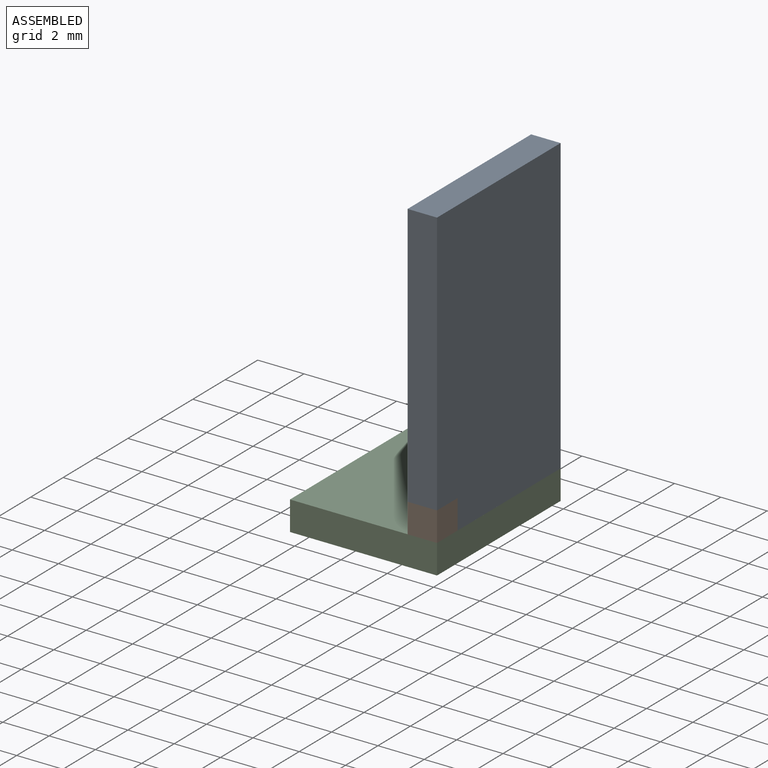
[diagram: assembled view]
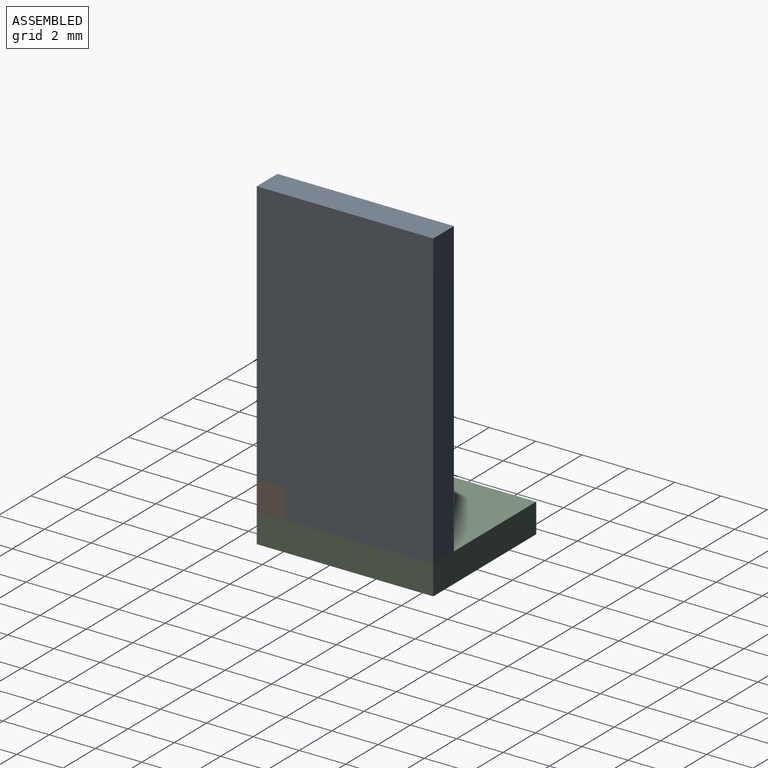
[diagram: assembled view, second angle]
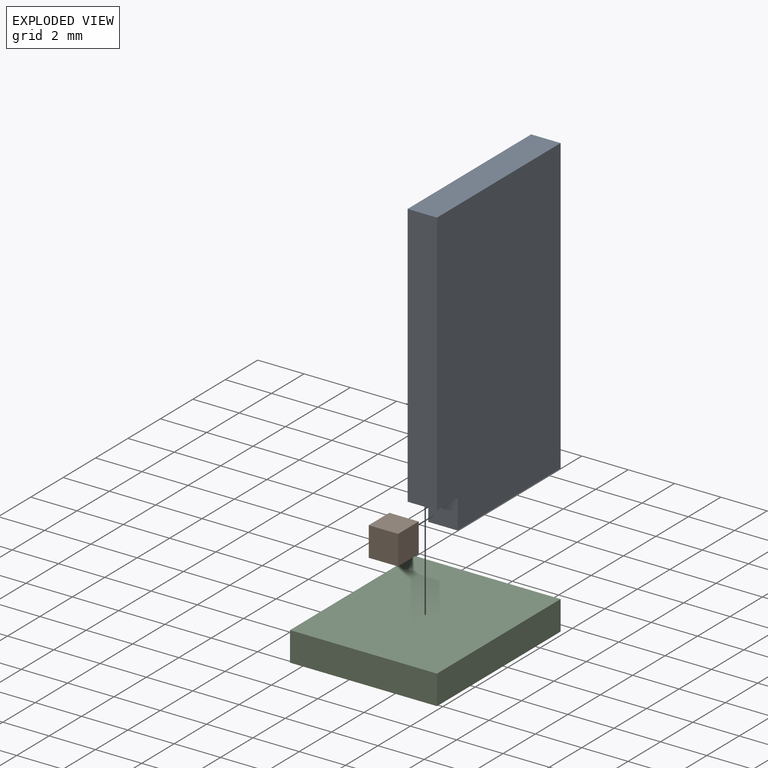
[diagram: exploded view]
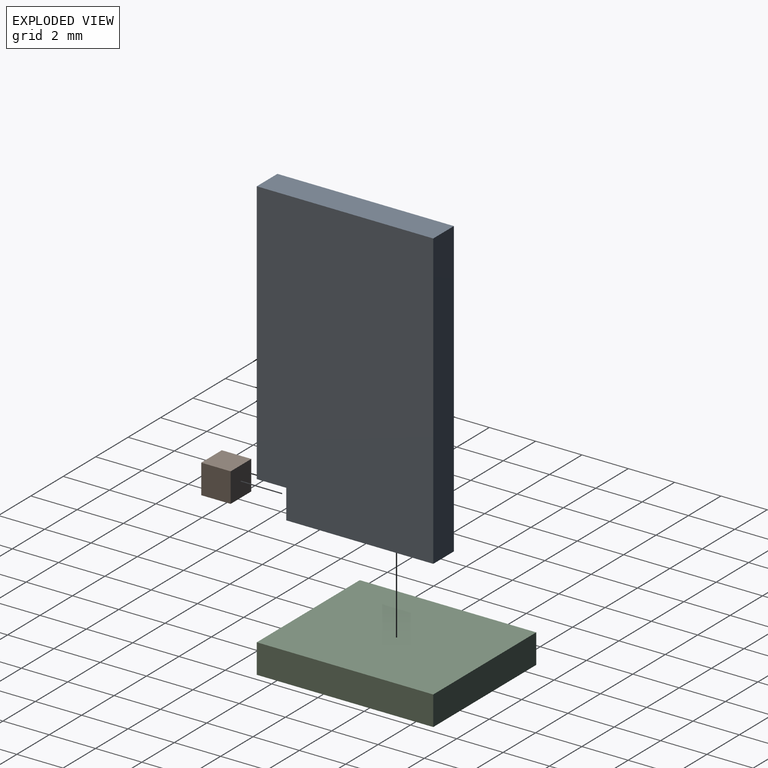
[diagram: exploded view, second angle]
ASSEMBLY  parts=3 mates=2
PART A: 8 faces, bbox 1.3x7.6x12.7 mm
  f0: plane 1.27x1.27mm, normal (0,0,1), area 1.6mm2, adj f1,f2,f4,f6
  f1: plane 11.43x1.27mm, normal (0,1,0), area 14.5mm2, adj f0,f2,f4,f5
  f2: plane 12.7x7.62mm, normal (-1,0,0), area 95.2mm2, adj f0,f1,f3,f5,f6,f7
  f3: plane 12.7x1.27mm, normal (0,-1,0), area 16.1mm2, adj f2,f4,f5,f7
  f4: plane 12.7x7.62mm, normal (1,0,0), area 95.2mm2, adj f0,f1,f3,f5,f6,f7
  f5: plane 7.62x1.27mm, normal (0,0,-1), area 9.7mm2, adj f1,f2,f3,f4
  f6: plane 1.27x1.27mm, normal (0,1,0), area 1.6mm2, adj f0,f2,f4,f7
  f7: plane 6.35x1.27mm, normal (0,0,1), area 8.1mm2, adj f2,f3,f4,f6
PART B: 6 faces, bbox 1.3x1.3x1.3 mm
  f0: plane 1.27x1.27mm, normal (-1,0,0), area 1.6mm2, adj f1,f3,f4,f5
  f1: plane 1.27x1.27mm, normal (0,-1,0), area 1.6mm2, adj f0,f2,f4,f5
  f2: plane 1.27x1.27mm, normal (1,0,0), area 1.6mm2, adj f1,f3,f4,f5
  f3: plane 1.27x1.27mm, normal (0,1,0), area 1.6mm2, adj f0,f2,f4,f5
  f4: plane 1.27x1.27mm, normal (0,0,1), area 1.6mm2, adj f0,f1,f2,f3
  f5: plane 1.27x1.27mm, normal (0,0,-1), area 1.6mm2, adj f0,f1,f2,f3
PART C: 8 faces, bbox 7.6x6.4x1.3 mm
  f0: plane 6.35x1.27mm, normal (0,0,1), area 8.1mm2, adj f1,f2,f3,f4
  f1: plane 6.35x5.08mm, normal (0,0,1), area 32.3mm2, adj f0,f2,f4,f6
  f2: plane 7.62x1.27mm, normal (0,1,0), area 9.7mm2, adj f0,f1,f3,f5,f6,f7
  f3: plane 6.35x1.27mm, normal (-1,0,0), area 8.1mm2, adj f0,f2,f4,f7
  f4: plane 7.62x1.27mm, normal (0,-1,0), area 9.7mm2, adj f0,f1,f3,f5,f6,f7
  f5: plane 6.35x1.27mm, normal (1,0,0), area 8.1mm2, adj f2,f4,f6,f7
  f6: plane 6.35x1.27mm, normal (0,0,1), area 8.1mm2, adj f1,f2,f4,f5
  f7: plane 7.62x6.35mm, normal (0,0,-1), area 48.4mm2, adj f2,f3,f4,f5
PLACE A rot(axis=(-1,0,0),180deg) t=(-10.4,106.67,11.59)mm
PLACE B rot(axis=(-0.71,-0.71,0),180deg) t=(-73.9,119.37,0.16)mm
PLACE C rot(axis=(0,0,1),90deg) t=(-25.64,129.53,-2.38)mm
MATE slider B.f3 <-> C.f4  axis (1,0,0) through (-47.87,78.09,-0.48)mm
MATE revolute A.f0 <-> B.f5  axis (0,0,-1) through (-48.5,78.09,0.16)mm
